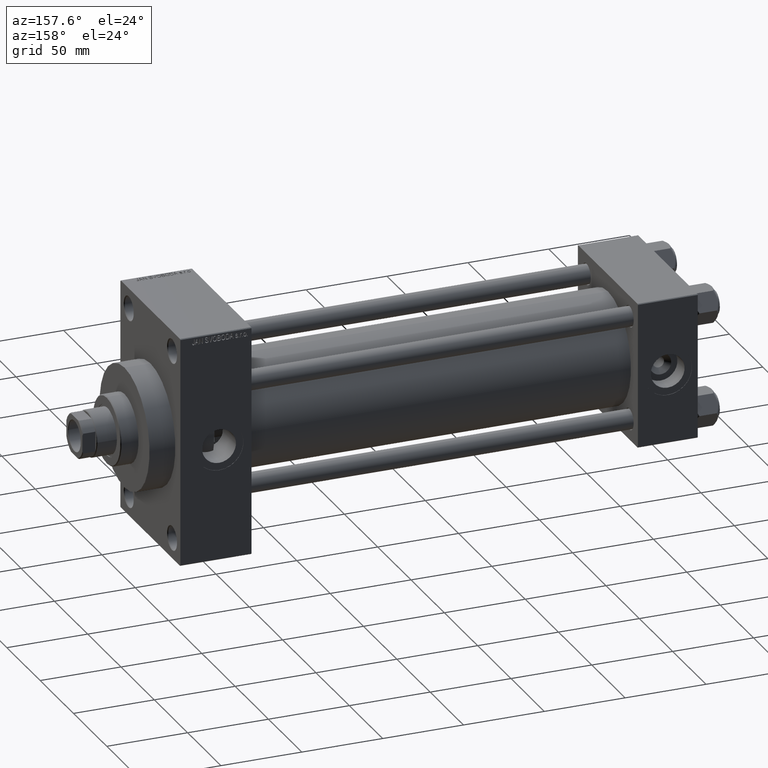
[diagram: clean part render]
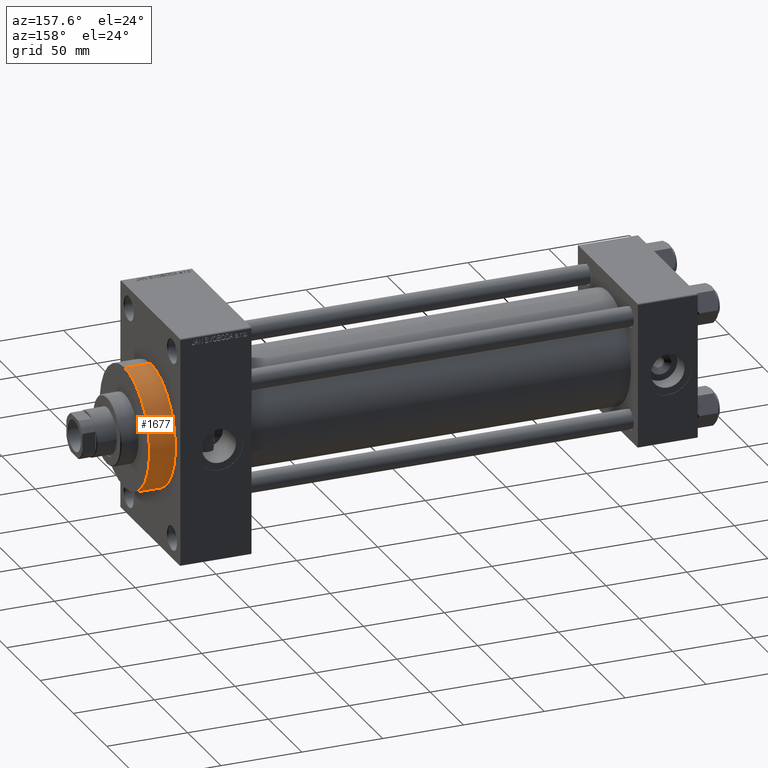
[diagram: same view with one face highlighted and labeled with its STEP entity id]
A machine part, auxiliary view. The second image highlights one B-rep face of the part: STEP entity #1677.
In plain terms, the highlighted cylindrical surface (partial cylindrical patch) has radius 37.5 mm, axis along (-1, -0, -0).
Its self-contained STEP definition (entity closure, byte-faithful):
#938 = VERTEX_POINT ( 'NONE', #44102 ) ;
#1677 = ADVANCED_FACE ( 'NONE', ( #45771 ), #27623, .T. ) ;
#2624 = ORIENTED_EDGE ( 'NONE', *, *, #16220, .F. ) ;
#2782 = EDGE_CURVE ( 'NONE', #20602, #938, #16055, .T. ) ;
#4702 = DIRECTION ( 'NONE',  ( 0.000000000000000000, 0.000000000000000000, -1.000000000000000000 ) ) ;
#4731 = VERTEX_POINT ( 'NONE', #28964 ) ;
#5599 = CARTESIAN_POINT ( 'NONE',  ( 335.9999999999999432, 4.592425496802575156E-15, -37.50000000000000711 ) ) ;
#6437 = CARTESIAN_POINT ( 'NONE',  ( 335.9999999999999432, 4.592425496802575156E-15, -37.50000000000000711 ) ) ;
#6822 = AXIS2_PLACEMENT_3D ( 'NONE', #26881, #34285, #4702 ) ;
#9723 = CARTESIAN_POINT ( 'NONE',  ( 335.9999999999999432, 0.000000000000000000, 0.000000000000000000 ) ) ;
#10471 = AXIS2_PLACEMENT_3D ( 'NONE', #35020, #42181, #35252 ) ;
#11358 = VECTOR ( 'NONE', #34478, 1000.000000000000000 ) ;
#13306 = DIRECTION ( 'NONE',  ( 1.000000000000000000, 0.000000000000000000, 0.000000000000000000 ) ) ;
#14276 = ORIENTED_EDGE ( 'NONE', *, *, #38863, .T. ) ;
#15810 = CARTESIAN_POINT ( 'NONE',  ( 335.9999999999999432, 0.000000000000000000, 37.50000000000000711 ) ) ;
#15858 = LINE ( 'NONE', #5599, #11358 ) ;
#16055 = LINE ( 'NONE', #15810, #31882 ) ;
#16220 = EDGE_CURVE ( 'NONE', #35126, #20602, #45139, .T. ) ;
#20602 = VERTEX_POINT ( 'NONE', #21801 ) ;
#20738 = AXIS2_PLACEMENT_3D ( 'NONE', #9723, #13306, #27411 ) ;
#21801 = CARTESIAN_POINT ( 'NONE',  ( 335.9999999999999432, 0.000000000000000000, 37.50000000000000711 ) ) ;
#26881 = CARTESIAN_POINT ( 'NONE',  ( 319.9999999999999432, 0.000000000000000000, 0.000000000000000000 ) ) ;
#27411 = DIRECTION ( 'NONE',  ( 0.000000000000000000, 0.000000000000000000, -1.000000000000000000 ) ) ;
#27422 = CIRCLE ( 'NONE', #6822, 37.50000000000000711 ) ;
#27623 = CYLINDRICAL_SURFACE ( 'NONE', #10471, 37.50000000000000711 ) ;
#28964 = CARTESIAN_POINT ( 'NONE',  ( 319.9999999999999432, 4.592425496802575156E-15, -37.50000000000000711 ) ) ;
#31882 = VECTOR ( 'NONE', #44954, 1000.000000000000000 ) ;
#34163 = ORIENTED_EDGE ( 'NONE', *, *, #44360, .T. ) ;
#34285 = DIRECTION ( 'NONE',  ( 1.000000000000000000, 0.000000000000000000, 0.000000000000000000 ) ) ;
#34478 = DIRECTION ( 'NONE',  ( -1.000000000000000000, -0.000000000000000000, -0.000000000000000000 ) ) ;
#35020 = CARTESIAN_POINT ( 'NONE',  ( 335.9999999999999432, 0.000000000000000000, 0.000000000000000000 ) ) ;
#35126 = VERTEX_POINT ( 'NONE', #6437 ) ;
#35252 = DIRECTION ( 'NONE',  ( 0.000000000000000000, 0.000000000000000000, 1.000000000000000000 ) ) ;
#37750 = EDGE_LOOP ( 'NONE', ( #2624, #14276, #34163, #39418 ) ) ;
#38863 = EDGE_CURVE ( 'NONE', #35126, #4731, #15858, .T. ) ;
#39418 = ORIENTED_EDGE ( 'NONE', *, *, #2782, .F. ) ;
#42181 = DIRECTION ( 'NONE',  ( -1.000000000000000000, -0.000000000000000000, -0.000000000000000000 ) ) ;
#44102 = CARTESIAN_POINT ( 'NONE',  ( 319.9999999999999432, 0.000000000000000000, 37.50000000000000711 ) ) ;
#44360 = EDGE_CURVE ( 'NONE', #4731, #938, #27422, .T. ) ;
#44954 = DIRECTION ( 'NONE',  ( -1.000000000000000000, -0.000000000000000000, -0.000000000000000000 ) ) ;
#45139 = CIRCLE ( 'NONE', #20738, 37.50000000000000711 ) ;
#45771 = FACE_OUTER_BOUND ( 'NONE', #37750, .T. ) ;